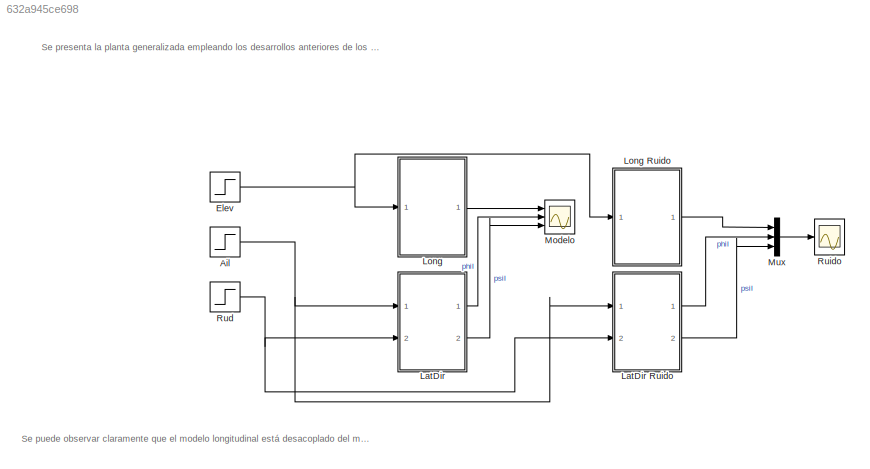
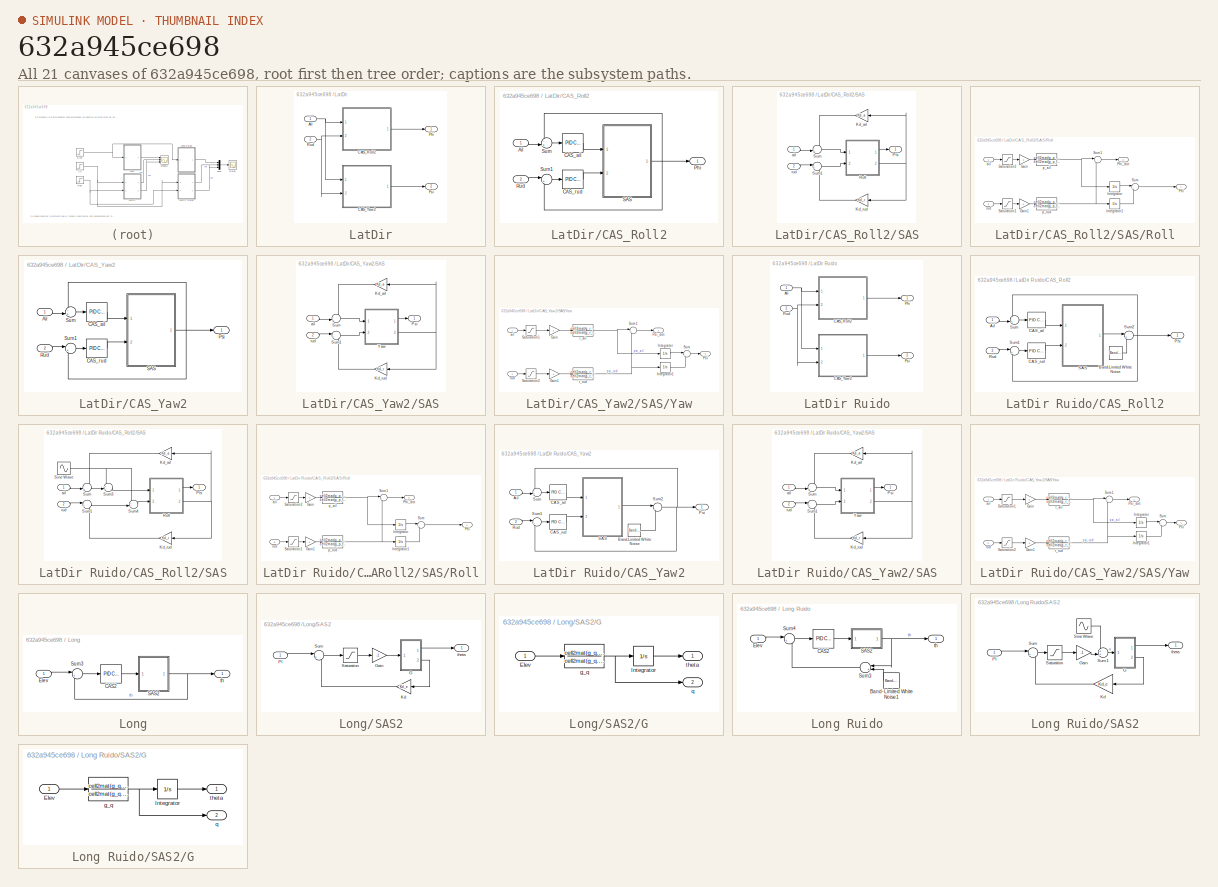
[diagram: thumbnail index - all 21 canvases of the model, root first then tree order]
MODEL slx_632a945ce698
KIND model
CONFIG AbsTol = auto
CONFIG EnableMultiTasking = off
CONFIG FixedStep = auto
CONFIG MaxStep = auto
CONFIG MinStep = auto
CONFIG RelTol = 1e-3
CONFIG SampleTimeConstraint = Unconstrained
CONFIG SolverName = VariableStepAuto
CONFIG StartTime = 0.0
CONFIG StopTime = 8
BLOCK [Step] Ail
  After = 20
  SampleTime = 0
  Time = 0
BLOCK [Step] Elev
  After = -35
  SampleTime = 0
  Time = 0
BLOCK [SubSystem] LatDir
  Ports = [2, 2]
  RequestExecContextInheritance = off
BLOCK [SubSystem] LatDir Ruido
  Ports = [2, 2]
  RequestExecContextInheritance = off
BLOCK [Inport] LatDir Ruido/Ail
BLOCK [SubSystem] LatDir Ruido/CAS_Roll2
  Ports = [2, 1]
  RequestExecContextInheritance = off
BLOCK [Inport] LatDir Ruido/CAS_Roll2/Ail
BLOCK [Reference] LatDir Ruido/CAS_Roll2/Band-Limited White Noise  REF=simulink/Sources/Band-Limited
White Noise
  Ports = [0, 1]
  SourceBlock = simulink/Sources/Band-Limited\nWhite Noise
  SourceProductBaseCode = SL
  SourceType = Band-Limited White Noise.
BLOCK [Reference] LatDir Ruido/CAS_Roll2/CAS_ail  REF=slpidlib/PID Controller
  Ports = [1, 1]
  SourceBlock = slpidlib/PID Controller
  SourceProductBaseCode = SL
  SourceType = PID 1dof
BLOCK [Reference] LatDir Ruido/CAS_Roll2/CAS_rud  REF=slpidlib/PID Controller
  Ports = [1, 1]
  SourceBlock = slpidlib/PID Controller
  SourceProductBaseCode = SL
  SourceType = PID 1dof
BLOCK [Outport] LatDir Ruido/CAS_Roll2/Phi
BLOCK [Inport] LatDir Ruido/CAS_Roll2/Rud
  Port = 2
BLOCK [SubSystem] LatDir Ruido/CAS_Roll2/SAS
  Ports = [2, 1]
  RequestExecContextInheritance = off
BLOCK [Gain] LatDir Ruido/CAS_Roll2/SAS/Kd_ail
  Gain = Kd_a
BLOCK [Gain] LatDir Ruido/CAS_Roll2/SAS/Kd_rud
  Gain = Kd_r
BLOCK [Outport] LatDir Ruido/CAS_Roll2/SAS/Phi
BLOCK [SubSystem] LatDir Ruido/CAS_Roll2/SAS/Roll
  Ports = [2, 2]
  RequestExecContextInheritance = off
BLOCK [Gain] LatDir Ruido/CAS_Roll2/SAS/Roll/Gain
  Gain = -1
BLOCK [Gain] LatDir Ruido/CAS_Roll2/SAS/Roll/Gain1
  Gain = -1
BLOCK [Integrator] LatDir Ruido/CAS_Roll2/SAS/Roll/Integrator
  Ports = [1, 1]
BLOCK [Integrator] LatDir Ruido/CAS_Roll2/SAS/Roll/Integrator1
  Ports = [1, 1]
BLOCK [Outport] LatDir Ruido/CAS_Roll2/SAS/Roll/Phi
BLOCK [Outport] LatDir Ruido/CAS_Roll2/SAS/Roll/Phi_dot
  Port = 2
BLOCK [Saturate] LatDir Ruido/CAS_Roll2/SAS/Roll/Saturation1
  LowerLimit = -30
  UpperLimit = 30
BLOCK [Saturate] LatDir Ruido/CAS_Roll2/SAS/Roll/Saturation2
  LowerLimit = -30
  UpperLimit = 30
BLOCK [Sum] LatDir Ruido/CAS_Roll2/SAS/Roll/Sum
  Inputs = |++
  Ports = [2, 1]
BLOCK [Sum] LatDir Ruido/CAS_Roll2/SAS/Roll/Sum1
  Inputs = |++
  Ports = [2, 1]
BLOCK [Inport] LatDir Ruido/CAS_Roll2/SAS/Roll/ail
BLOCK [TransferFcn] LatDir Ruido/CAS_Roll2/SAS/Roll/p_ail
  Denominator = cell2mat(g_p_ail.Denominator)
  Numerator = cell2mat(g_p_ail.Numerator)
BLOCK [TransferFcn] LatDir Ruido/CAS_Roll2/SAS/Roll/p_rud
  Denominator = cell2mat(g_p_rud.Denominator)
  Numerator = cell2mat(g_p_rud.Numerator)
BLOCK [Inport] LatDir Ruido/CAS_Roll2/SAS/Roll/rud 
  Port = 2
BLOCK [Sin] LatDir Ruido/CAS_Roll2/SAS/Sine Wave
  Ports = [0, 1]
  SampleTime = 0
BLOCK [Sum] LatDir Ruido/CAS_Roll2/SAS/Sum
  Inputs = -+|
  Ports = [2, 1]
BLOCK [Sum] LatDir Ruido/CAS_Roll2/SAS/Sum1
  Inputs = |+-
  Ports = [2, 1]
BLOCK [Sum] LatDir Ruido/CAS_Roll2/SAS/Sum3
  Inputs = ++|
  Ports = [2, 1]
BLOCK [Sum] LatDir Ruido/CAS_Roll2/SAS/Sum4
  Inputs = ++|
  Ports = [2, 1]
BLOCK [Inport] LatDir Ruido/CAS_Roll2/SAS/ail
BLOCK [Inport] LatDir Ruido/CAS_Roll2/SAS/rud 
  Port = 2
BLOCK [Sum] LatDir Ruido/CAS_Roll2/Sum
  Inputs = -+|
  Ports = [2, 1]
BLOCK [Sum] LatDir Ruido/CAS_Roll2/Sum1
  Inputs = |+-
  Ports = [2, 1]
BLOCK [Sum] LatDir Ruido/CAS_Roll2/Sum2
  Inputs = |++
  Ports = [2, 1]
BLOCK [SubSystem] LatDir Ruido/CAS_Yaw2
  Ports = [2, 1]
  RequestExecContextInheritance = off
BLOCK [Inport] LatDir Ruido/CAS_Yaw2/Ail
BLOCK [Reference] LatDir Ruido/CAS_Yaw2/Band-Limited White Noise  REF=simulink/Sources/Band-Limited
White Noise
  Ports = [0, 1]
  SourceBlock = simulink/Sources/Band-Limited\nWhite Noise
  SourceProductBaseCode = SL
  SourceType = Band-Limited White Noise.
BLOCK [Reference] LatDir Ruido/CAS_Yaw2/CAS_ail  REF=slpidlib/PID Controller
  Ports = [1, 1]
  SourceBlock = slpidlib/PID Controller
  SourceProductBaseCode = SL
  SourceType = PID 1dof
BLOCK [Reference] LatDir Ruido/CAS_Yaw2/CAS_rud  REF=slpidlib/PID Controller
  Ports = [1, 1]
  SourceBlock = slpidlib/PID Controller
  SourceProductBaseCode = SL
  SourceType = PID 1dof
BLOCK [Outport] LatDir Ruido/CAS_Yaw2/Psi
BLOCK [Inport] LatDir Ruido/CAS_Yaw2/Rud
  Port = 2
BLOCK [SubSystem] LatDir Ruido/CAS_Yaw2/SAS
  Ports = [2, 1]
  RequestExecContextInheritance = off
BLOCK [Gain] LatDir Ruido/CAS_Yaw2/SAS/Kd_ail
  Gain = Kd_a
BLOCK [Gain] LatDir Ruido/CAS_Yaw2/SAS/Kd_rud
  Gain = Kd_r
BLOCK [Outport] LatDir Ruido/CAS_Yaw2/SAS/Psi
BLOCK [Sum] LatDir Ruido/CAS_Yaw2/SAS/Sum
  Inputs = -+|
  Ports = [2, 1]
BLOCK [Sum] LatDir Ruido/CAS_Yaw2/SAS/Sum1
  Inputs = |+-
  Ports = [2, 1]
BLOCK [SubSystem] LatDir Ruido/CAS_Yaw2/SAS/Yaw
  Ports = [2, 2]
  RequestExecContextInheritance = off
BLOCK [Gain] LatDir Ruido/CAS_Yaw2/SAS/Yaw/Gain
  Gain = -1
BLOCK [Gain] LatDir Ruido/CAS_Yaw2/SAS/Yaw/Gain1
  Gain = -1
BLOCK [Integrator] LatDir Ruido/CAS_Yaw2/SAS/Yaw/Integrator
  Ports = [1, 1]
BLOCK [Integrator] LatDir Ruido/CAS_Yaw2/SAS/Yaw/Integrator1
  Ports = [1, 1]
BLOCK [Outport] LatDir Ruido/CAS_Yaw2/SAS/Yaw/Psi
BLOCK [Outport] LatDir Ruido/CAS_Yaw2/SAS/Yaw/Psi_dot
  Port = 2
BLOCK [Saturate] LatDir Ruido/CAS_Yaw2/SAS/Yaw/Saturation1
  LowerLimit = -30
  UpperLimit = 30
BLOCK [Saturate] LatDir Ruido/CAS_Yaw2/SAS/Yaw/Saturation2
  LowerLimit = -30
  UpperLimit = 30
BLOCK [Sum] LatDir Ruido/CAS_Yaw2/SAS/Yaw/Sum
  Inputs = |++
  Ports = [2, 1]
BLOCK [Sum] LatDir Ruido/CAS_Yaw2/SAS/Yaw/Sum1
  Inputs = |++
  Ports = [2, 1]
BLOCK [Inport] LatDir Ruido/CAS_Yaw2/SAS/Yaw/ail
BLOCK [TransferFcn] LatDir Ruido/CAS_Yaw2/SAS/Yaw/r_ail
  Denominator = cell2mat(g_r_ail.Denominator)
  Numerator = cell2mat(g_r_ail.Numerator)
BLOCK [TransferFcn] LatDir Ruido/CAS_Yaw2/SAS/Yaw/r_rud
  Denominator = cell2mat(g_r_rud.Denominator)
  Numerator = cell2mat(g_r_rud.Numerator)
BLOCK [Inport] LatDir Ruido/CAS_Yaw2/SAS/Yaw/rud 
  Port = 2
BLOCK [Inport] LatDir Ruido/CAS_Yaw2/SAS/ail
BLOCK [Inport] LatDir Ruido/CAS_Yaw2/SAS/rud 
  Port = 2
BLOCK [Sum] LatDir Ruido/CAS_Yaw2/Sum
  Inputs = -+|
  Ports = [2, 1]
BLOCK [Sum] LatDir Ruido/CAS_Yaw2/Sum1
  Inputs = |+-
  Ports = [2, 1]
BLOCK [Sum] LatDir Ruido/CAS_Yaw2/Sum2
  Inputs = |++
  Ports = [2, 1]
BLOCK [Outport] LatDir Ruido/Phi
BLOCK [Outport] LatDir Ruido/Psi
  Port = 2
BLOCK [Inport] LatDir Ruido/Rud
  Port = 2
BLOCK [Inport] LatDir/Ail
BLOCK [SubSystem] LatDir/CAS_Roll2
  Ports = [2, 1]
  RequestExecContextInheritance = off
BLOCK [Inport] LatDir/CAS_Roll2/Ail
BLOCK [Reference] LatDir/CAS_Roll2/CAS_ail  REF=slpidlib/PID Controller
  Ports = [1, 1]
  SourceBlock = slpidlib/PID Controller
  SourceProductBaseCode = SL
  SourceType = PID 1dof
BLOCK [Reference] LatDir/CAS_Roll2/CAS_rud  REF=slpidlib/PID Controller
  Ports = [1, 1]
  SourceBlock = slpidlib/PID Controller
  SourceProductBaseCode = SL
  SourceType = PID 1dof
BLOCK [Outport] LatDir/CAS_Roll2/Phi
BLOCK [Inport] LatDir/CAS_Roll2/Rud
  Port = 2
BLOCK [SubSystem] LatDir/CAS_Roll2/SAS
  Ports = [2, 1]
  RequestExecContextInheritance = off
BLOCK [Gain] LatDir/CAS_Roll2/SAS/Kd_ail
  Gain = Kd_a
BLOCK [Gain] LatDir/CAS_Roll2/SAS/Kd_rud
  Gain = Kd_r
BLOCK [Outport] LatDir/CAS_Roll2/SAS/Phi
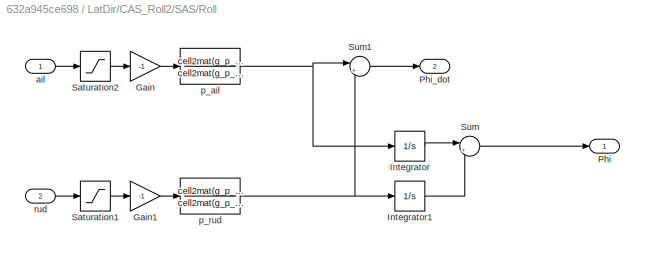
BLOCK [SubSystem] LatDir/CAS_Roll2/SAS/Roll
  Ports = [2, 2]
  RequestExecContextInheritance = off
BLOCK [Gain] LatDir/CAS_Roll2/SAS/Roll/Gain
  Gain = -1
BLOCK [Gain] LatDir/CAS_Roll2/SAS/Roll/Gain1
  Gain = -1
BLOCK [Integrator] LatDir/CAS_Roll2/SAS/Roll/Integrator
  Ports = [1, 1]
BLOCK [Integrator] LatDir/CAS_Roll2/SAS/Roll/Integrator1
  Ports = [1, 1]
BLOCK [Outport] LatDir/CAS_Roll2/SAS/Roll/Phi
BLOCK [Outport] LatDir/CAS_Roll2/SAS/Roll/Phi_dot
  Port = 2
BLOCK [Saturate] LatDir/CAS_Roll2/SAS/Roll/Saturation1
  LowerLimit = -30
  UpperLimit = 30
BLOCK [Saturate] LatDir/CAS_Roll2/SAS/Roll/Saturation2
  LowerLimit = -30
  UpperLimit = 30
BLOCK [Sum] LatDir/CAS_Roll2/SAS/Roll/Sum
  Inputs = |++
  Ports = [2, 1]
BLOCK [Sum] LatDir/CAS_Roll2/SAS/Roll/Sum1
  Inputs = |++
  Ports = [2, 1]
BLOCK [Inport] LatDir/CAS_Roll2/SAS/Roll/ail
BLOCK [TransferFcn] LatDir/CAS_Roll2/SAS/Roll/p_ail
  Denominator = cell2mat(g_p_ail.Denominator)
  Numerator = cell2mat(g_p_ail.Numerator)
BLOCK [TransferFcn] LatDir/CAS_Roll2/SAS/Roll/p_rud
  Denominator = cell2mat(g_p_rud.Denominator)
  Numerator = cell2mat(g_p_rud.Numerator)
BLOCK [Inport] LatDir/CAS_Roll2/SAS/Roll/rud 
  Port = 2
BLOCK [Sum] LatDir/CAS_Roll2/SAS/Sum
  Inputs = -+|
  Ports = [2, 1]
BLOCK [Sum] LatDir/CAS_Roll2/SAS/Sum1
  Inputs = |+-
  Ports = [2, 1]
BLOCK [Inport] LatDir/CAS_Roll2/SAS/ail
BLOCK [Inport] LatDir/CAS_Roll2/SAS/rud 
  Port = 2
BLOCK [Sum] LatDir/CAS_Roll2/Sum
  Inputs = -+|
  Ports = [2, 1]
BLOCK [Sum] LatDir/CAS_Roll2/Sum1
  Inputs = |+-
  Ports = [2, 1]
BLOCK [SubSystem] LatDir/CAS_Yaw2
  Ports = [2, 1]
  RequestExecContextInheritance = off
BLOCK [Inport] LatDir/CAS_Yaw2/Ail
BLOCK [Reference] LatDir/CAS_Yaw2/CAS_ail  REF=slpidlib/PID Controller
  Ports = [1, 1]
  SourceBlock = slpidlib/PID Controller
  SourceProductBaseCode = SL
  SourceType = PID 1dof
BLOCK [Reference] LatDir/CAS_Yaw2/CAS_rud  REF=slpidlib/PID Controller
  Ports = [1, 1]
  SourceBlock = slpidlib/PID Controller
  SourceProductBaseCode = SL
  SourceType = PID 1dof
BLOCK [Outport] LatDir/CAS_Yaw2/Psi
BLOCK [Inport] LatDir/CAS_Yaw2/Rud
  Port = 2
BLOCK [SubSystem] LatDir/CAS_Yaw2/SAS
  Ports = [2, 1]
  RequestExecContextInheritance = off
BLOCK [Gain] LatDir/CAS_Yaw2/SAS/Kd_ail
  Gain = Kd_a
BLOCK [Gain] LatDir/CAS_Yaw2/SAS/Kd_rud
  Gain = Kd_r
BLOCK [Outport] LatDir/CAS_Yaw2/SAS/Psi
BLOCK [Sum] LatDir/CAS_Yaw2/SAS/Sum
  Inputs = -+|
  Ports = [2, 1]
BLOCK [Sum] LatDir/CAS_Yaw2/SAS/Sum1
  Inputs = |+-
  Ports = [2, 1]
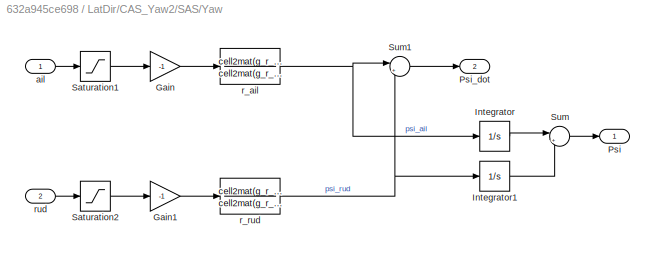
BLOCK [SubSystem] LatDir/CAS_Yaw2/SAS/Yaw
  Ports = [2, 2]
  RequestExecContextInheritance = off
BLOCK [Gain] LatDir/CAS_Yaw2/SAS/Yaw/Gain
  Gain = -1
BLOCK [Gain] LatDir/CAS_Yaw2/SAS/Yaw/Gain1
  Gain = -1
BLOCK [Integrator] LatDir/CAS_Yaw2/SAS/Yaw/Integrator
  Ports = [1, 1]
BLOCK [Integrator] LatDir/CAS_Yaw2/SAS/Yaw/Integrator1
  Ports = [1, 1]
BLOCK [Outport] LatDir/CAS_Yaw2/SAS/Yaw/Psi
BLOCK [Outport] LatDir/CAS_Yaw2/SAS/Yaw/Psi_dot
  Port = 2
BLOCK [Saturate] LatDir/CAS_Yaw2/SAS/Yaw/Saturation1
  LowerLimit = -30
  UpperLimit = 30
BLOCK [Saturate] LatDir/CAS_Yaw2/SAS/Yaw/Saturation2
  LowerLimit = -30
  UpperLimit = 30
BLOCK [Sum] LatDir/CAS_Yaw2/SAS/Yaw/Sum
  Inputs = |++
  Ports = [2, 1]
BLOCK [Sum] LatDir/CAS_Yaw2/SAS/Yaw/Sum1
  Inputs = |++
  Ports = [2, 1]
BLOCK [Inport] LatDir/CAS_Yaw2/SAS/Yaw/ail
BLOCK [TransferFcn] LatDir/CAS_Yaw2/SAS/Yaw/r_ail
  Denominator = cell2mat(g_r_ail.Denominator)
  Numerator = cell2mat(g_r_ail.Numerator)
BLOCK [TransferFcn] LatDir/CAS_Yaw2/SAS/Yaw/r_rud
  Denominator = cell2mat(g_r_rud.Denominator)
  Numerator = cell2mat(g_r_rud.Numerator)
BLOCK [Inport] LatDir/CAS_Yaw2/SAS/Yaw/rud 
  Port = 2
BLOCK [Inport] LatDir/CAS_Yaw2/SAS/ail
BLOCK [Inport] LatDir/CAS_Yaw2/SAS/rud 
  Port = 2
BLOCK [Sum] LatDir/CAS_Yaw2/Sum
  Inputs = -+|
  Ports = [2, 1]
BLOCK [Sum] LatDir/CAS_Yaw2/Sum1
  Inputs = |+-
  Ports = [2, 1]
BLOCK [Outport] LatDir/Phi
BLOCK [Outport] LatDir/Psi
  Port = 2
BLOCK [Inport] LatDir/Rud
  Port = 2
BLOCK [SubSystem] Long
  Ports = [1, 1]
  RequestExecContextInheritance = off
BLOCK [SubSystem] Long Ruido
  Ports = [1, 1]
  RequestExecContextInheritance = off
BLOCK [Reference] Long Ruido/Band-Limited White Noise1  REF=simulink/Sources/Band-Limited
White Noise
  Ports = [0, 1]
  SourceBlock = simulink/Sources/Band-Limited\nWhite Noise
  SourceProductBaseCode = SL
  SourceType = Band-Limited White Noise.
BLOCK [Reference] Long Ruido/CAS2  REF=slpidlib/PID Controller
  Ports = [1, 1]
  SourceBlock = slpidlib/PID Controller
  SourceProductBaseCode = SL
  SourceType = PID 1dof
BLOCK [Inport] Long Ruido/Elev
BLOCK [SubSystem] Long Ruido/SAS2
  Ports = [1, 1]
  RequestExecContextInheritance = off
BLOCK [SubSystem] Long Ruido/SAS2/G
  Ports = [1, 2]
  RequestExecContextInheritance = off
BLOCK [Inport] Long Ruido/SAS2/G/Elev
BLOCK [Integrator] Long Ruido/SAS2/G/Integrator
  Ports = [1, 1]
BLOCK [TransferFcn] Long Ruido/SAS2/G/g_q
  Denominator = cell2mat(g_q.Denominator)
  Numerator = cell2mat(g_q.Numerator)
BLOCK [Outport] Long Ruido/SAS2/G/q
  Port = 2
BLOCK [Outport] Long Ruido/SAS2/G/theta
BLOCK [Gain] Long Ruido/SAS2/Gain
  Gain = -1
BLOCK [Gain] Long Ruido/SAS2/Kd
  Gain = Kd_e
BLOCK [Inport] Long Ruido/SAS2/PI
BLOCK [Saturate] Long Ruido/SAS2/Saturation
  LowerLimit = -30
  UpperLimit = 30
BLOCK [Sin] Long Ruido/SAS2/Sine Wave
  Frequency = 12*pi
  Ports = [0, 1]
  SampleTime = 0
BLOCK [Sum] Long Ruido/SAS2/Sum
  Inputs = |+-
  Ports = [2, 1]
BLOCK [Sum] Long Ruido/SAS2/Sum1
  Inputs = ++|
  Ports = [2, 1]
BLOCK [Outport] Long Ruido/SAS2/theta
BLOCK [Sum] Long Ruido/Sum3
  Inputs = |++
  NameLocation = top
  Ports = [2, 1]
BLOCK [Sum] Long Ruido/Sum4
  Inputs = |+-
  Ports = [2, 1]
BLOCK [Outport] Long Ruido/th
BLOCK [Reference] Long/CAS2  REF=slpidlib/PID Controller
  Ports = [1, 1]
  SourceBlock = slpidlib/PID Controller
  SourceProductBaseCode = SL
  SourceType = PID 1dof
BLOCK [Inport] Long/Elev
BLOCK [SubSystem] Long/SAS2
  Ports = [1, 1]
  RequestExecContextInheritance = off
BLOCK [SubSystem] Long/SAS2/G
  Ports = [1, 2]
  RequestExecContextInheritance = off
BLOCK [Inport] Long/SAS2/G/Elev
BLOCK [Integrator] Long/SAS2/G/Integrator
  Ports = [1, 1]
BLOCK [TransferFcn] Long/SAS2/G/g_q
  Denominator = cell2mat(g_q.Denominator)
  Numerator = cell2mat(g_q.Numerator)
BLOCK [Outport] Long/SAS2/G/q
  Port = 2
BLOCK [Outport] Long/SAS2/G/theta
BLOCK [Gain] Long/SAS2/Gain
  Gain = -1
BLOCK [Gain] Long/SAS2/Kd
  Gain = Kd_e
BLOCK [Inport] Long/SAS2/PI
BLOCK [Saturate] Long/SAS2/Saturation
  LowerLimit = -30
  UpperLimit = 30
BLOCK [Sum] Long/SAS2/Sum
  Inputs = |+-
  Ports = [2, 1]
BLOCK [Outport] Long/SAS2/theta
BLOCK [Sum] Long/Sum3
  Inputs = |+-
  Ports = [2, 1]
BLOCK [Outport] Long/th
BLOCK [Scope] Modelo
  Floating = off
  NumInputPorts = 3
  Ports = [3]
  ScopeSpecificationString = Simulink.scopes.TimeScopeBlockCfg('CurrentConfiguration', extmgr.ConfigurationSet(extmgr.Configuration('Core','General UI',true),extmgr.Configuration('Core','Source UI',true),extmgr.Configuration('Sources','WiredSimulink',true),extmgr.Configuration('Visuals','Time Domain',true,'SerializedDisplays',{struct('MinYLimReal','-42.72283','MaxYLimReal','4.74698','YLabelReal','','MinYLimMag','0.00000','Max...<+4076ch>
BLOCK [Mux] Mux
  DisplayOption = bar
  Inputs = 3
  Ports = [3, 1]
BLOCK [Step] Rud
  After = 20
  SampleTime = 0
  Time = 0
BLOCK [Scope] Ruido
  Floating = off
  NumInputPorts = 1
  Ports = [1]
  ScopeSpecificationString = Simulink.scopes.TimeScopeBlockCfg('CurrentConfiguration', extmgr.ConfigurationSet(extmgr.Configuration('Core','General UI',true),extmgr.Configuration('Core','Source UI',true),extmgr.Configuration('Sources','WiredSimulink',true,'DataLoggingVariableName','ScopeData1','DataLogging',true,'DataLoggingSaveFormat','StructureWithTime'),extmgr.Configuration('Visuals','Time Domain',true,'SerializedDisplays'...<+1684ch>
ANNOTATION (root): Se presenta la planta generalizada empleando los desarrollos anteriores de los modelos Lateral-Direccional y Longitudinal. Para el modelo LatDir se consideró una velocidad con un integrador para la posición, luego de determinar que los dos modelos son suficientemente parecidos.
ANNOTATION (root): Se puede observar claramente que el modelo longitudinal está desacoplado del modelo Lateral-Direccional. Adicionalmente, el desempeño del controlador PID para los movimientos lateral y direccional baja drásticamente con ángulos de entrada para el alerón y el timón diferentes.
NET Ail:1 -> LatDir Ruido:1, LatDir:1
NET Elev:1 -> Long Ruido:1, Long:1
NET LatDir Ruido/Ail:1 -> LatDir Ruido/CAS_Roll2:1, LatDir Ruido/CAS_Yaw2:1
LINE LatDir Ruido/CAS_Roll2/Ail:1 -> LatDir Ruido/CAS_Roll2/Sum:2
LINE LatDir Ruido/CAS_Roll2/Band-Limited White Noise:1 -> LatDir Ruido/CAS_Roll2/Sum2:2
LINE LatDir Ruido/CAS_Roll2/CAS_ail:1 -> LatDir Ruido/CAS_Roll2/SAS:1
LINE LatDir Ruido/CAS_Roll2/CAS_rud:1 -> LatDir Ruido/CAS_Roll2/SAS:2
LINE LatDir Ruido/CAS_Roll2/Rud:1 -> LatDir Ruido/CAS_Roll2/Sum1:1
LINE LatDir Ruido/CAS_Roll2/SAS/Kd_ail:1 -> LatDir Ruido/CAS_Roll2/SAS/Sum:1
LINE LatDir Ruido/CAS_Roll2/SAS/Kd_rud:1 -> LatDir Ruido/CAS_Roll2/SAS/Sum1:2
LINE LatDir Ruido/CAS_Roll2/SAS/Roll/Gain1:1 -> LatDir Ruido/CAS_Roll2/SAS/Roll/p_rud:1
LINE LatDir Ruido/CAS_Roll2/SAS/Roll/Gain:1 -> LatDir Ruido/CAS_Roll2/SAS/Roll/p_ail:1
LINE LatDir Ruido/CAS_Roll2/SAS/Roll/Integrator1:1 -> LatDir Ruido/CAS_Roll2/SAS/Roll/Sum:2
LINE LatDir Ruido/CAS_Roll2/SAS/Roll/Integrator:1 -> LatDir Ruido/CAS_Roll2/SAS/Roll/Sum:1
LINE LatDir Ruido/CAS_Roll2/SAS/Roll/Saturation1:1 -> LatDir Ruido/CAS_Roll2/SAS/Roll/Gain1:1
LINE LatDir Ruido/CAS_Roll2/SAS/Roll/Saturation2:1 -> LatDir Ruido/CAS_Roll2/SAS/Roll/Gain:1
LINE LatDir Ruido/CAS_Roll2/SAS/Roll/Sum1:1 -> LatDir Ruido/CAS_Roll2/SAS/Roll/Phi_dot:1
LINE LatDir Ruido/CAS_Roll2/SAS/Roll/Sum:1 -> LatDir Ruido/CAS_Roll2/SAS/Roll/Phi:1
LINE LatDir Ruido/CAS_Roll2/SAS/Roll/ail:1 -> LatDir Ruido/CAS_Roll2/SAS/Roll/Saturation2:1
NET LatDir Ruido/CAS_Roll2/SAS/Roll/p_ail:1 -> LatDir Ruido/CAS_Roll2/SAS/Roll/Integrator:1, LatDir Ruido/CAS_Roll2/SAS/Roll/Sum1:1
NET LatDir Ruido/CAS_Roll2/SAS/Roll/p_rud:1 -> LatDir Ruido/CAS_Roll2/SAS/Roll/Integrator1:1, LatDir Ruido/CAS_Roll2/SAS/Roll/Sum1:2
LINE LatDir Ruido/CAS_Roll2/SAS/Roll/rud :1 -> LatDir Ruido/CAS_Roll2/SAS/Roll/Saturation1:1
LINE LatDir Ruido/CAS_Roll2/SAS/Roll:1 -> LatDir Ruido/CAS_Roll2/SAS/Phi:1
NET LatDir Ruido/CAS_Roll2/SAS/Roll:2 -> LatDir Ruido/CAS_Roll2/SAS/Kd_ail:1, LatDir Ruido/CAS_Roll2/SAS/Kd_rud:1
NET LatDir Ruido/CAS_Roll2/SAS/Sine Wave:1 -> LatDir Ruido/CAS_Roll2/SAS/Sum3:1, LatDir Ruido/CAS_Roll2/SAS/Sum4:1
LINE LatDir Ruido/CAS_Roll2/SAS/Sum1:1 -> LatDir Ruido/CAS_Roll2/SAS/Sum4:2
LINE LatDir Ruido/CAS_Roll2/SAS/Sum3:1 -> LatDir Ruido/CAS_Roll2/SAS/Roll:1
LINE LatDir Ruido/CAS_Roll2/SAS/Sum4:1 -> LatDir Ruido/CAS_Roll2/SAS/Roll:2
LINE LatDir Ruido/CAS_Roll2/SAS/Sum:1 -> LatDir Ruido/CAS_Roll2/SAS/Sum3:2
LINE LatDir Ruido/CAS_Roll2/SAS/ail:1 -> LatDir Ruido/CAS_Roll2/SAS/Sum:2
LINE LatDir Ruido/CAS_Roll2/SAS/rud :1 -> LatDir Ruido/CAS_Roll2/SAS/Sum1:1
LINE LatDir Ruido/CAS_Roll2/SAS:1 -> LatDir Ruido/CAS_Roll2/Sum2:1
LINE LatDir Ruido/CAS_Roll2/Sum1:1 -> LatDir Ruido/CAS_Roll2/CAS_rud:1
NET LatDir Ruido/CAS_Roll2/Sum2:1 -> LatDir Ruido/CAS_Roll2/Phi:1, LatDir Ruido/CAS_Roll2/Sum1:2, LatDir Ruido/CAS_Roll2/Sum:1
LINE LatDir Ruido/CAS_Roll2/Sum:1 -> LatDir Ruido/CAS_Roll2/CAS_ail:1
LINE LatDir Ruido/CAS_Roll2:1 -> LatDir Ruido/Phi:1
LINE LatDir Ruido/CAS_Yaw2/Ail:1 -> LatDir Ruido/CAS_Yaw2/Sum:2
LINE LatDir Ruido/CAS_Yaw2/Band-Limited White Noise:1 -> LatDir Ruido/CAS_Yaw2/Sum2:2
LINE LatDir Ruido/CAS_Yaw2/CAS_ail:1 -> LatDir Ruido/CAS_Yaw2/SAS:1
LINE LatDir Ruido/CAS_Yaw2/CAS_rud:1 -> LatDir Ruido/CAS_Yaw2/SAS:2
LINE LatDir Ruido/CAS_Yaw2/Rud:1 -> LatDir Ruido/CAS_Yaw2/Sum1:1
LINE LatDir Ruido/CAS_Yaw2/SAS/Kd_ail:1 -> LatDir Ruido/CAS_Yaw2/SAS/Sum:1
LINE LatDir Ruido/CAS_Yaw2/SAS/Kd_rud:1 -> LatDir Ruido/CAS_Yaw2/SAS/Sum1:2
LINE LatDir Ruido/CAS_Yaw2/SAS/Sum1:1 -> LatDir Ruido/CAS_Yaw2/SAS/Yaw:2
LINE LatDir Ruido/CAS_Yaw2/SAS/Sum:1 -> LatDir Ruido/CAS_Yaw2/SAS/Yaw:1
LINE LatDir Ruido/CAS_Yaw2/SAS/Yaw/Gain1:1 -> LatDir Ruido/CAS_Yaw2/SAS/Yaw/r_rud:1
LINE LatDir Ruido/CAS_Yaw2/SAS/Yaw/Gain:1 -> LatDir Ruido/CAS_Yaw2/SAS/Yaw/r_ail:1
LINE LatDir Ruido/CAS_Yaw2/SAS/Yaw/Integrator1:1 -> LatDir Ruido/CAS_Yaw2/SAS/Yaw/Sum:2
LINE LatDir Ruido/CAS_Yaw2/SAS/Yaw/Integrator:1 -> LatDir Ruido/CAS_Yaw2/SAS/Yaw/Sum:1
LINE LatDir Ruido/CAS_Yaw2/SAS/Yaw/Saturation1:1 -> LatDir Ruido/CAS_Yaw2/SAS/Yaw/Gain:1
LINE LatDir Ruido/CAS_Yaw2/SAS/Yaw/Saturation2:1 -> LatDir Ruido/CAS_Yaw2/SAS/Yaw/Gain1:1
LINE LatDir Ruido/CAS_Yaw2/SAS/Yaw/Sum1:1 -> LatDir Ruido/CAS_Yaw2/SAS/Yaw/Psi_dot:1
LINE LatDir Ruido/CAS_Yaw2/SAS/Yaw/Sum:1 -> LatDir Ruido/CAS_Yaw2/SAS/Yaw/Psi:1
LINE LatDir Ruido/CAS_Yaw2/SAS/Yaw/ail:1 -> LatDir Ruido/CAS_Yaw2/SAS/Yaw/Saturation1:1
NET LatDir Ruido/CAS_Yaw2/SAS/Yaw/r_ail:1 -> LatDir Ruido/CAS_Yaw2/SAS/Yaw/Integrator:1, LatDir Ruido/CAS_Yaw2/SAS/Yaw/Sum1:1
NET LatDir Ruido/CAS_Yaw2/SAS/Yaw/r_rud:1 -> LatDir Ruido/CAS_Yaw2/SAS/Yaw/Integrator1:1, LatDir Ruido/CAS_Yaw2/SAS/Yaw/Sum1:2
LINE LatDir Ruido/CAS_Yaw2/SAS/Yaw/rud :1 -> LatDir Ruido/CAS_Yaw2/SAS/Yaw/Saturation2:1
LINE LatDir Ruido/CAS_Yaw2/SAS/Yaw:1 -> LatDir Ruido/CAS_Yaw2/SAS/Psi:1
NET LatDir Ruido/CAS_Yaw2/SAS/Yaw:2 -> LatDir Ruido/CAS_Yaw2/SAS/Kd_ail:1, LatDir Ruido/CAS_Yaw2/SAS/Kd_rud:1
LINE LatDir Ruido/CAS_Yaw2/SAS/ail:1 -> LatDir Ruido/CAS_Yaw2/SAS/Sum:2
LINE LatDir Ruido/CAS_Yaw2/SAS/rud :1 -> LatDir Ruido/CAS_Yaw2/SAS/Sum1:1
LINE LatDir Ruido/CAS_Yaw2/SAS:1 -> LatDir Ruido/CAS_Yaw2/Sum2:1
LINE LatDir Ruido/CAS_Yaw2/Sum1:1 -> LatDir Ruido/CAS_Yaw2/CAS_rud:1
NET LatDir Ruido/CAS_Yaw2/Sum2:1 -> LatDir Ruido/CAS_Yaw2/Psi:1, LatDir Ruido/CAS_Yaw2/Sum1:2, LatDir Ruido/CAS_Yaw2/Sum:1
LINE LatDir Ruido/CAS_Yaw2/Sum:1 -> LatDir Ruido/CAS_Yaw2/CAS_ail:1
LINE LatDir Ruido/CAS_Yaw2:1 -> LatDir Ruido/Psi:1
NET LatDir Ruido/Rud:1 -> LatDir Ruido/CAS_Roll2:2, LatDir Ruido/CAS_Yaw2:2
LINE LatDir Ruido:1 -> Mux:2
LINE LatDir Ruido:2 -> Mux:3
NET LatDir/Ail:1 -> LatDir/CAS_Roll2:1, LatDir/CAS_Yaw2:1
LINE LatDir/CAS_Roll2/Ail:1 -> LatDir/CAS_Roll2/Sum:2
LINE LatDir/CAS_Roll2/CAS_ail:1 -> LatDir/CAS_Roll2/SAS:1
LINE LatDir/CAS_Roll2/CAS_rud:1 -> LatDir/CAS_Roll2/SAS:2
LINE LatDir/CAS_Roll2/Rud:1 -> LatDir/CAS_Roll2/Sum1:1
LINE LatDir/CAS_Roll2/SAS/Kd_ail:1 -> LatDir/CAS_Roll2/SAS/Sum:1
LINE LatDir/CAS_Roll2/SAS/Kd_rud:1 -> LatDir/CAS_Roll2/SAS/Sum1:2
LINE LatDir/CAS_Roll2/SAS/Roll/Gain1:1 -> LatDir/CAS_Roll2/SAS/Roll/p_rud:1
LINE LatDir/CAS_Roll2/SAS/Roll/Gain:1 -> LatDir/CAS_Roll2/SAS/Roll/p_ail:1
LINE LatDir/CAS_Roll2/SAS/Roll/Integrator1:1 -> LatDir/CAS_Roll2/SAS/Roll/Sum:2
LINE LatDir/CAS_Roll2/SAS/Roll/Integrator:1 -> LatDir/CAS_Roll2/SAS/Roll/Sum:1
LINE LatDir/CAS_Roll2/SAS/Roll/Saturation1:1 -> LatDir/CAS_Roll2/SAS/Roll/Gain1:1
LINE LatDir/CAS_Roll2/SAS/Roll/Saturation2:1 -> LatDir/CAS_Roll2/SAS/Roll/Gain:1
LINE LatDir/CAS_Roll2/SAS/Roll/Sum1:1 -> LatDir/CAS_Roll2/SAS/Roll/Phi_dot:1
LINE LatDir/CAS_Roll2/SAS/Roll/Sum:1 -> LatDir/CAS_Roll2/SAS/Roll/Phi:1
LINE LatDir/CAS_Roll2/SAS/Roll/ail:1 -> LatDir/CAS_Roll2/SAS/Roll/Saturation2:1
NET LatDir/CAS_Roll2/SAS/Roll/p_ail:1 -> LatDir/CAS_Roll2/SAS/Roll/Integrator:1, LatDir/CAS_Roll2/SAS/Roll/Sum1:1
NET LatDir/CAS_Roll2/SAS/Roll/p_rud:1 -> LatDir/CAS_Roll2/SAS/Roll/Integrator1:1, LatDir/CAS_Roll2/SAS/Roll/Sum1:2
LINE LatDir/CAS_Roll2/SAS/Roll/rud :1 -> LatDir/CAS_Roll2/SAS/Roll/Saturation1:1
LINE LatDir/CAS_Roll2/SAS/Roll:1 -> LatDir/CAS_Roll2/SAS/Phi:1
NET LatDir/CAS_Roll2/SAS/Roll:2 -> LatDir/CAS_Roll2/SAS/Kd_ail:1, LatDir/CAS_Roll2/SAS/Kd_rud:1
LINE LatDir/CAS_Roll2/SAS/Sum1:1 -> LatDir/CAS_Roll2/SAS/Roll:2
LINE LatDir/CAS_Roll2/SAS/Sum:1 -> LatDir/CAS_Roll2/SAS/Roll:1
LINE LatDir/CAS_Roll2/SAS/ail:1 -> LatDir/CAS_Roll2/SAS/Sum:2
LINE LatDir/CAS_Roll2/SAS/rud :1 -> LatDir/CAS_Roll2/SAS/Sum1:1
NET LatDir/CAS_Roll2/SAS:1 -> LatDir/CAS_Roll2/Phi:1, LatDir/CAS_Roll2/Sum1:2, LatDir/CAS_Roll2/Sum:1
LINE LatDir/CAS_Roll2/Sum1:1 -> LatDir/CAS_Roll2/CAS_rud:1
LINE LatDir/CAS_Roll2/Sum:1 -> LatDir/CAS_Roll2/CAS_ail:1
LINE LatDir/CAS_Roll2:1 -> LatDir/Phi:1
LINE LatDir/CAS_Yaw2/Ail:1 -> LatDir/CAS_Yaw2/Sum:2
LINE LatDir/CAS_Yaw2/CAS_ail:1 -> LatDir/CAS_Yaw2/SAS:1
LINE LatDir/CAS_Yaw2/CAS_rud:1 -> LatDir/CAS_Yaw2/SAS:2
LINE LatDir/CAS_Yaw2/Rud:1 -> LatDir/CAS_Yaw2/Sum1:1
LINE LatDir/CAS_Yaw2/SAS/Kd_ail:1 -> LatDir/CAS_Yaw2/SAS/Sum:1
LINE LatDir/CAS_Yaw2/SAS/Kd_rud:1 -> LatDir/CAS_Yaw2/SAS/Sum1:2
LINE LatDir/CAS_Yaw2/SAS/Sum1:1 -> LatDir/CAS_Yaw2/SAS/Yaw:2
LINE LatDir/CAS_Yaw2/SAS/Sum:1 -> LatDir/CAS_Yaw2/SAS/Yaw:1
LINE LatDir/CAS_Yaw2/SAS/Yaw/Gain1:1 -> LatDir/CAS_Yaw2/SAS/Yaw/r_rud:1
LINE LatDir/CAS_Yaw2/SAS/Yaw/Gain:1 -> LatDir/CAS_Yaw2/SAS/Yaw/r_ail:1
LINE LatDir/CAS_Yaw2/SAS/Yaw/Integrator1:1 -> LatDir/CAS_Yaw2/SAS/Yaw/Sum:2
LINE LatDir/CAS_Yaw2/SAS/Yaw/Integrator:1 -> LatDir/CAS_Yaw2/SAS/Yaw/Sum:1
LINE LatDir/CAS_Yaw2/SAS/Yaw/Saturation1:1 -> LatDir/CAS_Yaw2/SAS/Yaw/Gain:1
LINE LatDir/CAS_Yaw2/SAS/Yaw/Saturation2:1 -> LatDir/CAS_Yaw2/SAS/Yaw/Gain1:1
LINE LatDir/CAS_Yaw2/SAS/Yaw/Sum1:1 -> LatDir/CAS_Yaw2/SAS/Yaw/Psi_dot:1
LINE LatDir/CAS_Yaw2/SAS/Yaw/Sum:1 -> LatDir/CAS_Yaw2/SAS/Yaw/Psi:1
LINE LatDir/CAS_Yaw2/SAS/Yaw/ail:1 -> LatDir/CAS_Yaw2/SAS/Yaw/Saturation1:1
NET LatDir/CAS_Yaw2/SAS/Yaw/r_ail:1 -> LatDir/CAS_Yaw2/SAS/Yaw/Integrator:1, LatDir/CAS_Yaw2/SAS/Yaw/Sum1:1
NET LatDir/CAS_Yaw2/SAS/Yaw/r_rud:1 -> LatDir/CAS_Yaw2/SAS/Yaw/Integrator1:1, LatDir/CAS_Yaw2/SAS/Yaw/Sum1:2
LINE LatDir/CAS_Yaw2/SAS/Yaw/rud :1 -> LatDir/CAS_Yaw2/SAS/Yaw/Saturation2:1
LINE LatDir/CAS_Yaw2/SAS/Yaw:1 -> LatDir/CAS_Yaw2/SAS/Psi:1
NET LatDir/CAS_Yaw2/SAS/Yaw:2 -> LatDir/CAS_Yaw2/SAS/Kd_ail:1, LatDir/CAS_Yaw2/SAS/Kd_rud:1
LINE LatDir/CAS_Yaw2/SAS/ail:1 -> LatDir/CAS_Yaw2/SAS/Sum:2
LINE LatDir/CAS_Yaw2/SAS/rud :1 -> LatDir/CAS_Yaw2/SAS/Sum1:1
NET LatDir/CAS_Yaw2/SAS:1 -> LatDir/CAS_Yaw2/Psi:1, LatDir/CAS_Yaw2/Sum1:2, LatDir/CAS_Yaw2/Sum:1
LINE LatDir/CAS_Yaw2/Sum1:1 -> LatDir/CAS_Yaw2/CAS_rud:1
LINE LatDir/CAS_Yaw2/Sum:1 -> LatDir/CAS_Yaw2/CAS_ail:1
LINE LatDir/CAS_Yaw2:1 -> LatDir/Psi:1
NET LatDir/Rud:1 -> LatDir/CAS_Roll2:2, LatDir/CAS_Yaw2:2
LINE LatDir:1 -> Modelo:2
LINE LatDir:2 -> Modelo:3
LINE Long Ruido/Band-Limited White Noise1:1 -> Long Ruido/Sum3:2
LINE Long Ruido/CAS2:1 -> Long Ruido/SAS2:1
LINE Long Ruido/Elev:1 -> Long Ruido/Sum4:1
LINE Long Ruido/SAS2/G/Elev:1 -> Long Ruido/SAS2/G/g_q:1
LINE Long Ruido/SAS2/G/Integrator:1 -> Long Ruido/SAS2/G/theta:1
NET Long Ruido/SAS2/G/g_q:1 -> Long Ruido/SAS2/G/Integrator:1, Long Ruido/SAS2/G/q:1
LINE Long Ruido/SAS2/G:1 -> Long Ruido/SAS2/theta:1
LINE Long Ruido/SAS2/G:2 -> Long Ruido/SAS2/Kd:1
LINE Long Ruido/SAS2/Gain:1 -> Long Ruido/SAS2/Sum1:2
LINE Long Ruido/SAS2/Kd:1 -> Long Ruido/SAS2/Sum:2
LINE Long Ruido/SAS2/PI:1 -> Long Ruido/SAS2/Sum:1
LINE Long Ruido/SAS2/Saturation:1 -> Long Ruido/SAS2/Gain:1
LINE Long Ruido/SAS2/Sine Wave:1 -> Long Ruido/SAS2/Sum1:1
LINE Long Ruido/SAS2/Sum1:1 -> Long Ruido/SAS2/G:1
LINE Long Ruido/SAS2/Sum:1 -> Long Ruido/SAS2/Saturation:1
NET Long Ruido/SAS2:1 -> Long Ruido/Sum3:1, Long Ruido/th:1
LINE Long Ruido/Sum3:1 -> Long Ruido/Sum4:2
LINE Long Ruido/Sum4:1 -> Long Ruido/CAS2:1
LINE Long Ruido:1 -> Mux:1
LINE Long/CAS2:1 -> Long/SAS2:1
LINE Long/Elev:1 -> Long/Sum3:1
LINE Long/SAS2/G/Elev:1 -> Long/SAS2/G/g_q:1
LINE Long/SAS2/G/Integrator:1 -> Long/SAS2/G/theta:1
NET Long/SAS2/G/g_q:1 -> Long/SAS2/G/Integrator:1, Long/SAS2/G/q:1
LINE Long/SAS2/G:1 -> Long/SAS2/theta:1
LINE Long/SAS2/G:2 -> Long/SAS2/Kd:1
LINE Long/SAS2/Gain:1 -> Long/SAS2/G:1
LINE Long/SAS2/Kd:1 -> Long/SAS2/Sum:2
LINE Long/SAS2/PI:1 -> Long/SAS2/Sum:1
LINE Long/SAS2/Saturation:1 -> Long/SAS2/Gain:1
LINE Long/SAS2/Sum:1 -> Long/SAS2/Saturation:1
NET Long/SAS2:1 -> Long/Sum3:2, Long/th:1
LINE Long/Sum3:1 -> Long/CAS2:1
LINE Long:1 -> Modelo:1
LINE Mux:1 -> Ruido:1
NET Rud:1 -> LatDir Ruido:2, LatDir:2
note: NET lines group one-source signal fan-out (src -> all destinations, sorted); 1:1 wires keep LINE
